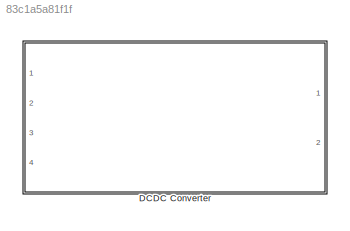
MODEL slx_83c1a5a81f1f
KIND library
CONFIG AbsTol = auto
CONFIG EnableMultiTasking = off
CONFIG FixedStep = auto
CONFIG MaxStep = auto
CONFIG MinStep = auto
CONFIG RelTol = 1e-3
CONFIG SampleTimeConstraint = Unconstrained
CONFIG Solver = VariableStepAuto
CONFIG SolverName = VariableStepAuto
CONFIG StartTime = 0.0
CONFIG StopTime = 10.0
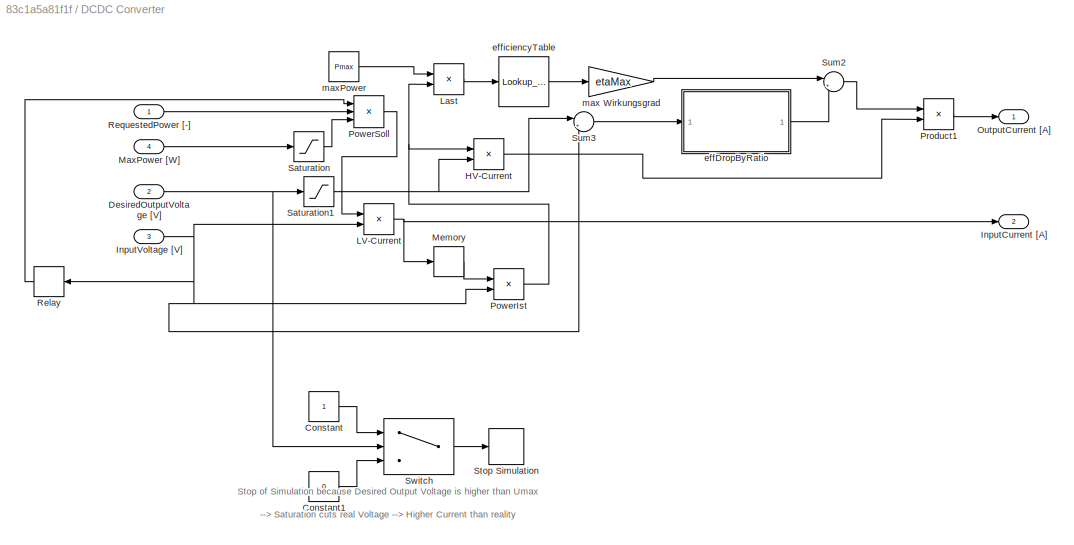
BLOCK [SubSystem] DCDC Converter
  Ports = [4, 2]
  RequestExecContextInheritance = off
BLOCK [Constant] DCDC Converter/Constant
BLOCK [Constant] DCDC Converter/Constant1
  Value = 0
BLOCK [Inport] DCDC Converter/DesiredOutputVoltage [V]
  IconDisplay = Port number
  Port = 2
  SampleTime = LocalSampleTime
BLOCK [Product] DCDC Converter/HV-Current
  InputSameDT = off
  Inputs = */
  OutDataTypeStr = Inherit: Inherit via internal rule
  Ports = [2, 1]
  RndMeth = Floor
  SaturateOnIntegerOverflow = off
BLOCK [Outport] DCDC Converter/InputCurrent [A]
  IconDisplay = Port number
  Port = 2
  SampleTime = GlobalSampleTime
BLOCK [Inport] DCDC Converter/InputVoltage [V]
  IconDisplay = Port number
  Port = 3
  SampleTime = LocalSampleTime
BLOCK [Product] DCDC Converter/LV-Current
  InputSameDT = off
  Inputs = */
  OutDataTypeStr = Inherit: Inherit via internal rule
  Ports = [2, 1]
  RndMeth = Floor
  SaturateOnIntegerOverflow = off
BLOCK [Product] DCDC Converter/Last
  InputSameDT = off
  Inputs = /*
  OutDataTypeStr = Inherit: Inherit via internal rule
  Ports = [2, 1]
  RndMeth = Floor
  SaturateOnIntegerOverflow = off
BLOCK [Inport] DCDC Converter/MaxPower [W]
  IconDisplay = Port number
  Port = 4
  SampleTime = LocalSampleTime
BLOCK [Memory] DCDC Converter/Memory
BLOCK [Outport] DCDC Converter/OutputCurrent [A]
  IconDisplay = Port number
  SampleTime = GlobalSampleTime
BLOCK [Product] DCDC Converter/PowerIst
  InputSameDT = off
  OutDataTypeStr = Inherit: Inherit via internal rule
  Ports = [2, 1]
  SaturateOnIntegerOverflow = off
BLOCK [Product] DCDC Converter/PowerSoll
  InputSameDT = off
  Inputs = 3
  OutDataTypeStr = Inherit: Inherit via internal rule
  Ports = [3, 1]
  SaturateOnIntegerOverflow = off
BLOCK [Product] DCDC Converter/Product1
  InputSameDT = off
  OutDataTypeStr = Inherit: Inherit via internal rule
  Ports = [2, 1]
  RndMeth = Floor
  SaturateOnIntegerOverflow = off
BLOCK [Relay] DCDC Converter/Relay
  OffSwitchValue = Umin-3
  OnSwitchValue = Umin+12
BLOCK [Inport] DCDC Converter/RequestedPower [-]
  IconDisplay = Port number
  SampleTime = LocalSampleTime
BLOCK [Saturate] DCDC Converter/Saturation
  InputPortMap = u0
  LowerLimit = 0
  Ports = [1, 1]
  UpperLimit = Pmax
BLOCK [Saturate] DCDC Converter/Saturation1
  InputPortMap = u0
  LowerLimit = 0
  Ports = [1, 1]
  UpperLimit = Umax
BLOCK [Stop] DCDC Converter/Stop Simulation
BLOCK [Sum] DCDC Converter/Sum2
  IconShape = round
  InputSameDT = off
  Inputs = |+-
  OutDataTypeStr = Inherit: Inherit via internal rule
  Ports = [2, 1]
  SaturateOnIntegerOverflow = off
BLOCK [Sum] DCDC Converter/Sum3
  IconShape = round
  InputSameDT = off
  Inputs = |+-
  OutDataTypeStr = Inherit: Inherit via internal rule
  Ports = [2, 1]
  SaturateOnIntegerOverflow = off
BLOCK [Switch] DCDC Converter/Switch
  Criteria = u2 > Threshold
  InputSameDT = off
  SaturateOnIntegerOverflow = off
  Threshold = Umax
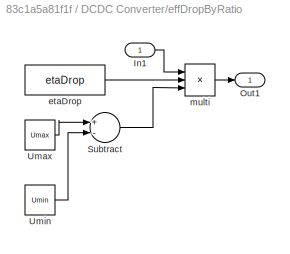
BLOCK [SubSystem] DCDC Converter/effDropByRatio
  Ports = [1, 1]
  RequestExecContextInheritance = off
BLOCK [Inport] DCDC Converter/effDropByRatio/In1
  IconDisplay = Port number
BLOCK [Outport] DCDC Converter/effDropByRatio/Out1
  IconDisplay = Port number
BLOCK [Sum] DCDC Converter/effDropByRatio/Subtract
  InputSameDT = off
  Inputs = +-
  OutDataTypeStr = Inherit: Inherit via internal rule
  Ports = [2, 1]
  SaturateOnIntegerOverflow = off
BLOCK [Constant] DCDC Converter/effDropByRatio/Umax
  Value = Umax
BLOCK [Constant] DCDC Converter/effDropByRatio/Umin
  Value = Umin
BLOCK [Constant] DCDC Converter/effDropByRatio/etaDrop
  Value = etaDrop
BLOCK [Product] DCDC Converter/effDropByRatio/multi
  InputSameDT = off
  Inputs = **/
  OutDataTypeStr = Inherit: Inherit via internal rule
  Ports = [3, 1]
  SaturateOnIntegerOverflow = off
BLOCK [Lookup_n-D] DCDC Converter/efficiencyTable
  BreakpointsForDimension1 = Load
  NumberOfTableDimensions = 1
  Ports = [1, 1]
  RndMeth = Simplest
  Table = eff
BLOCK [Gain] DCDC Converter/max Wirkungsgrad
  Gain = etaMax
  OutDataTypeStr = Inherit: Inherit via internal rule
  ParamDataTypeStr = Inherit: Inherit via internal rule
  SaturateOnIntegerOverflow = off
BLOCK [Constant] DCDC Converter/maxPower
  Value = Pmax
ANNOTATION DCDC Converter: Stop of Simulation because Desired Output Voltage is higher than Umax --> Saturation cuts real Voltage --> Higher Current than reality
LINE DCDC Converter/Constant1:1 -> DCDC Converter/Switch:3
LINE DCDC Converter/Constant:1 -> DCDC Converter/Switch:1
NET DCDC Converter/DesiredOutputVoltage [V]:1 -> DCDC Converter/Saturation1:1, DCDC Converter/Switch:2
LINE DCDC Converter/HV-Current:1 -> DCDC Converter/Product1:2
NET DCDC Converter/InputVoltage [V]:1 -> DCDC Converter/LV-Current:2, DCDC Converter/PowerIst:2, DCDC Converter/Relay:1, DCDC Converter/Sum3:2
NET DCDC Converter/LV-Current:1 -> DCDC Converter/InputCurrent [A]:1, DCDC Converter/Memory:1
LINE DCDC Converter/Last:1 -> DCDC Converter/efficiencyTable:1
LINE DCDC Converter/MaxPower [W]:1 -> DCDC Converter/Saturation:1
LINE DCDC Converter/Memory:1 -> DCDC Converter/PowerIst:1
NET DCDC Converter/PowerIst:1 -> DCDC Converter/HV-Current:1, DCDC Converter/Last:2
LINE DCDC Converter/PowerSoll:1 -> DCDC Converter/LV-Current:1
LINE DCDC Converter/Product1:1 -> DCDC Converter/OutputCurrent [A]:1
LINE DCDC Converter/Relay:1 -> DCDC Converter/PowerSoll:1
LINE DCDC Converter/RequestedPower [-]:1 -> DCDC Converter/PowerSoll:2
NET DCDC Converter/Saturation1:1 -> DCDC Converter/HV-Current:2, DCDC Converter/Sum3:1
LINE DCDC Converter/Saturation:1 -> DCDC Converter/PowerSoll:3
LINE DCDC Converter/Sum2:1 -> DCDC Converter/Product1:1
LINE DCDC Converter/Sum3:1 -> DCDC Converter/effDropByRatio:1
LINE DCDC Converter/Switch:1 -> DCDC Converter/Stop Simulation:1
LINE DCDC Converter/effDropByRatio/In1:1 -> DCDC Converter/effDropByRatio/multi:1
LINE DCDC Converter/effDropByRatio/Subtract:1 -> DCDC Converter/effDropByRatio/multi:3
LINE DCDC Converter/effDropByRatio/Umax:1 -> DCDC Converter/effDropByRatio/Subtract:1
LINE DCDC Converter/effDropByRatio/Umin:1 -> DCDC Converter/effDropByRatio/Subtract:2
LINE DCDC Converter/effDropByRatio/etaDrop:1 -> DCDC Converter/effDropByRatio/multi:2
LINE DCDC Converter/effDropByRatio/multi:1 -> DCDC Converter/effDropByRatio/Out1:1
LINE DCDC Converter/effDropByRatio:1 -> DCDC Converter/Sum2:2
LINE DCDC Converter/efficiencyTable:1 -> DCDC Converter/max Wirkungsgrad:1
LINE DCDC Converter/max Wirkungsgrad:1 -> DCDC Converter/Sum2:1
LINE DCDC Converter/maxPower:1 -> DCDC Converter/Last:1
note: NET lines group one-source signal fan-out (src -> all destinations, sorted); 1:1 wires keep LINE
